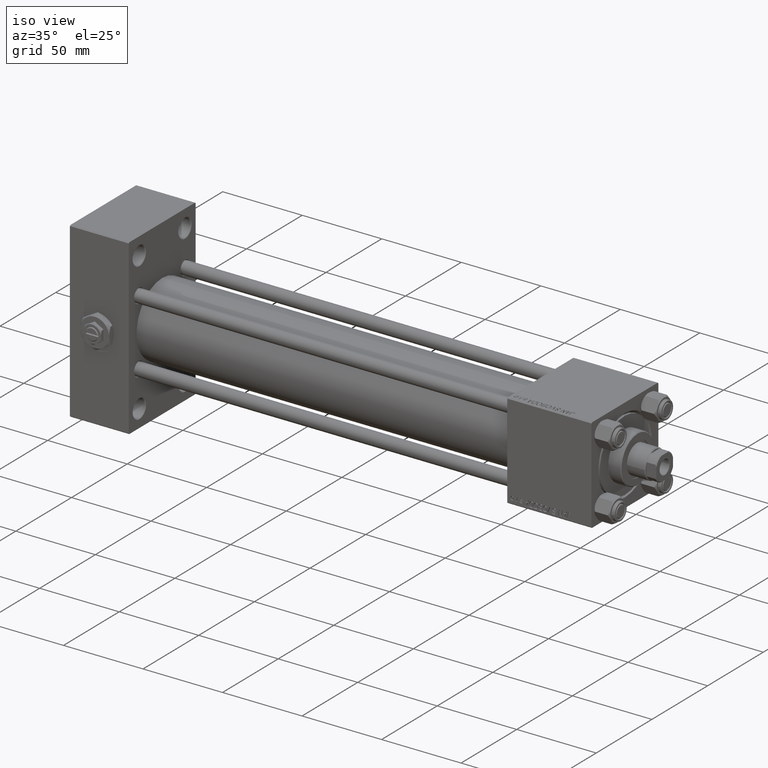
[diagram: clean part render]
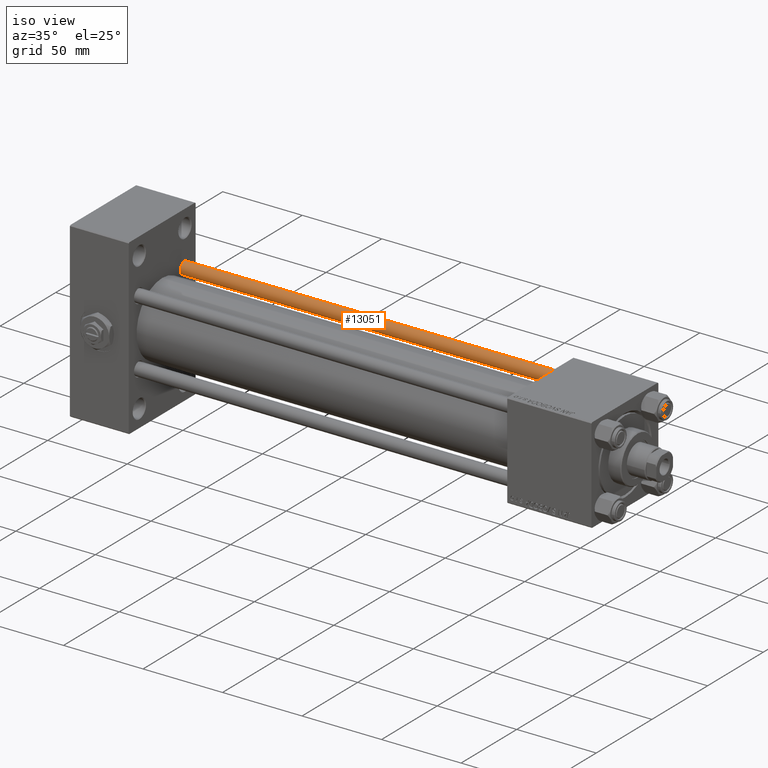
[diagram: same view with one face highlighted and labeled with its STEP entity id]
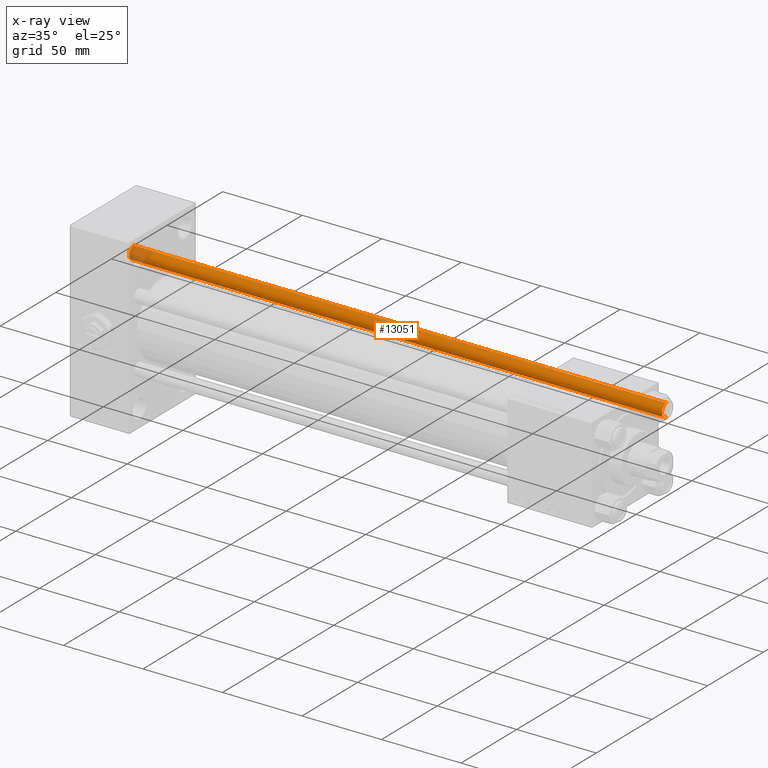
[diagram: x-ray of the same camera — body ghosted, the highlighted face saturated]
A machine part, iso view. The second image highlights one B-rep face of the part: STEP entity #13051.
The next image is the same camera in x-ray: the body ghosted, the highlighted face saturated — about 4% of this face is hidden behind the body in this view.
In plain terms, the highlighted cylindrical surface (edge-blend (fillet) strip) has radius 4 mm, axis along (1, 0, 0).
Its self-contained STEP definition (entity closure, byte-faithful):
#1935 = EDGE_CURVE ( 'NONE', #3115, #47522, #25453, .T. ) ;
#3115 = VERTEX_POINT ( 'NONE', #19928 ) ;
#3822 = FACE_OUTER_BOUND ( 'NONE', #17129, .T. ) ;
#5224 = AXIS2_PLACEMENT_3D ( 'NONE', #11011, #26985, #42953 ) ;
#6738 = VECTOR ( 'NONE', #21409, 1000.000000000000000 ) ;
#6987 = EDGE_CURVE ( 'NONE', #31213, #47522, #43685, .T. ) ;
#9057 = DIRECTION ( 'NONE',  ( 1.000000000000000000, 0.000000000000000000, 0.000000000000000000 ) ) ;
#11011 = CARTESIAN_POINT ( 'NONE',  ( 0.000000000000000000, 0.000000000000000000, 0.5000000000003335110 ) ) ;
#11788 = CIRCLE ( 'NONE', #23502, 4.000000000000000000 ) ;
#12014 = VECTOR ( 'NONE', #32551, 1000.000000000000000 ) ;
#13051 = ADVANCED_FACE ( 'NONE', ( #3822 ), #44404, .T. ) ;
#13086 = CARTESIAN_POINT ( 'NONE',  ( -4.000000000000000000, 0.000000000000000000, 0.5000000000003335110 ) ) ;
#17129 = EDGE_LOOP ( 'NONE', ( #36908, #26109, #26784, #49671 ) ) ;
#19928 = CARTESIAN_POINT ( 'NONE',  ( -4.000000000000000000, 0.000000000000000000, 335.5000000000001705 ) ) ;
#21409 = DIRECTION ( 'NONE',  ( -0.000000000000000000, -0.000000000000000000, -1.000000000000000000 ) ) ;
#23502 = AXIS2_PLACEMENT_3D ( 'NONE', #44919, #48837, #9057 ) ;
#25453 = LINE ( 'NONE', #44831, #12014 ) ;
#26109 = ORIENTED_EDGE ( 'NONE', *, *, #48792, .T. ) ;
#26784 = ORIENTED_EDGE ( 'NONE', *, *, #6987, .T. ) ;
#26885 = VERTEX_POINT ( 'NONE', #43530 ) ;
#26985 = DIRECTION ( 'NONE',  ( -0.000000000000000000, -0.000000000000000000, 1.000000000000000000 ) ) ;
#31213 = VERTEX_POINT ( 'NONE', #41660 ) ;
#31855 = DIRECTION ( 'NONE',  ( -1.000000000000000000, 0.000000000000000000, 0.000000000000000000 ) ) ;
#32551 = DIRECTION ( 'NONE',  ( -0.000000000000000000, -0.000000000000000000, -1.000000000000000000 ) ) ;
#35520 = DIRECTION ( 'NONE',  ( -0.000000000000000000, -0.000000000000000000, -1.000000000000000000 ) ) ;
#36908 = ORIENTED_EDGE ( 'NONE', *, *, #51123, .T. ) ;
#41299 = CARTESIAN_POINT ( 'NONE',  ( 4.000000000000000000, 4.898587196589411843E-16, 336.0000000000000000 ) ) ;
#41660 = CARTESIAN_POINT ( 'NONE',  ( 4.000000000000000000, 4.898587196589411843E-16, 0.5000000000003335110 ) ) ;
#42953 = DIRECTION ( 'NONE',  ( 1.000000000000000000, 0.000000000000000000, 0.000000000000000000 ) ) ;
#43530 = CARTESIAN_POINT ( 'NONE',  ( 4.000000000000000000, 4.898587196589411843E-16, 335.5000000000001705 ) ) ;
#43685 = CIRCLE ( 'NONE', #5224, 4.000000000000000000 ) ;
#44404 = CYLINDRICAL_SURFACE ( 'NONE', #47972, 4.000000000000000000 ) ;
#44831 = CARTESIAN_POINT ( 'NONE',  ( -4.000000000000000000, 0.000000000000000000, 336.0000000000000000 ) ) ;
#44919 = CARTESIAN_POINT ( 'NONE',  ( 0.000000000000000000, 0.000000000000000000, 335.5000000000001705 ) ) ;
#45223 = LINE ( 'NONE', #41299, #6738 ) ;
#47522 = VERTEX_POINT ( 'NONE', #13086 ) ;
#47972 = AXIS2_PLACEMENT_3D ( 'NONE', #51742, #35520, #31855 ) ;
#48792 = EDGE_CURVE ( 'NONE', #26885, #31213, #45223, .T. ) ;
#48837 = DIRECTION ( 'NONE',  ( 0.000000000000000000, 0.000000000000000000, -1.000000000000000000 ) ) ;
#49671 = ORIENTED_EDGE ( 'NONE', *, *, #1935, .F. ) ;
#51123 = EDGE_CURVE ( 'NONE', #3115, #26885, #11788, .T. ) ;
#51742 = CARTESIAN_POINT ( 'NONE',  ( 0.000000000000000000, 0.000000000000000000, 336.0000000000000000 ) ) ;